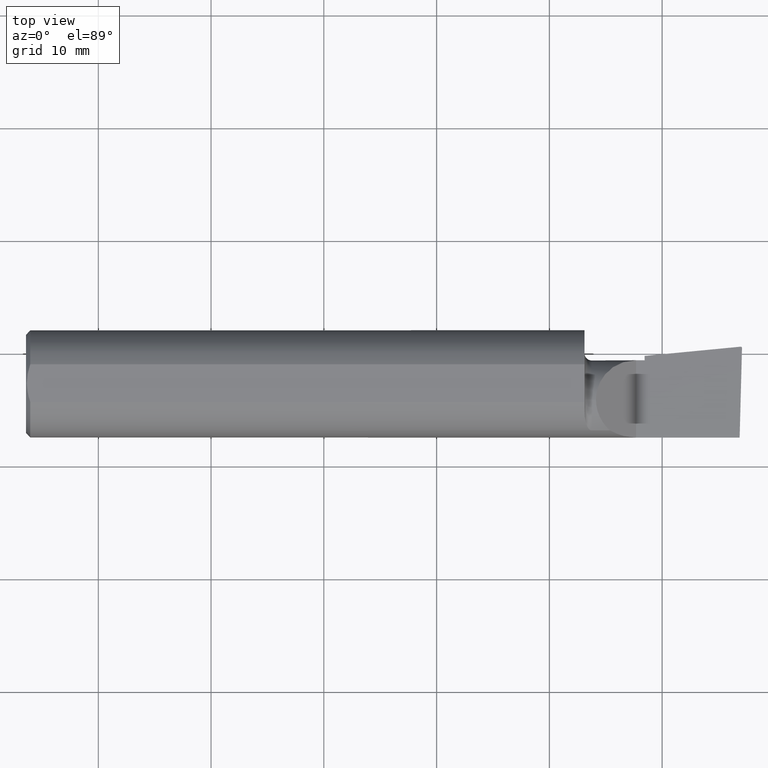
[diagram: clean part render]
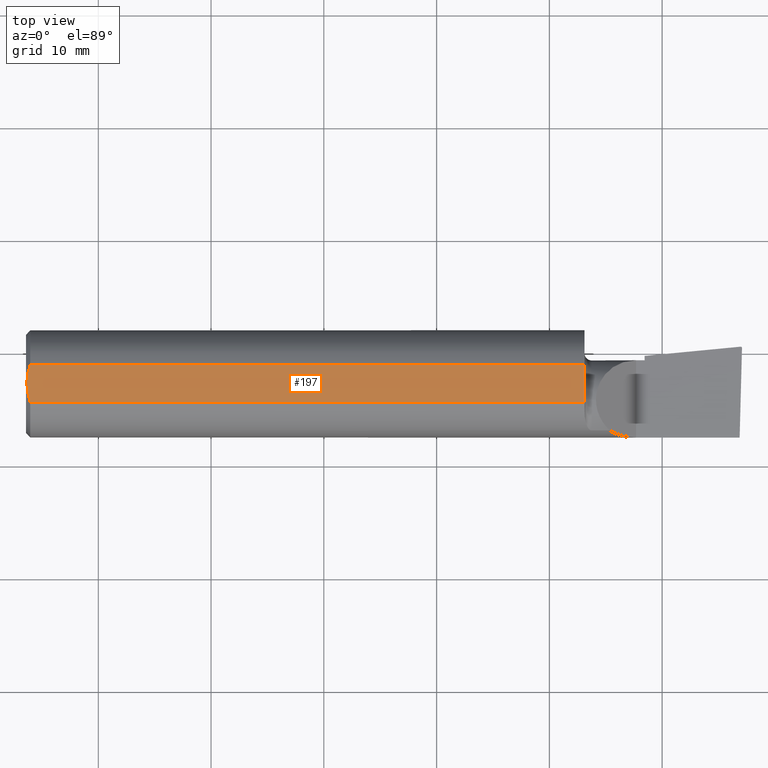
[diagram: same view with one face highlighted and labeled with its STEP entity id]
A machine part, top view. The second image highlights one B-rep face of the part: STEP entity #197.
In plain terms, the highlighted planar face has unit normal (0, 0, -1).
Its self-contained STEP definition (entity closure, byte-faithful):
#62 = CARTESIAN_POINT ( 'NONE',  ( 1.949999999999999956, 0.1000000000000000194, 0.1753499999999999504 ) ) ;
#152 = LINE ( 'NONE', #535, #507 ) ;
#195 = EDGE_CURVE ( 'NONE', #394, #509, #1163, .T. ) ;
#197 = ADVANCED_FACE ( 'NONE', ( #883 ), #1141, .F. ) ;
#205 = CARTESIAN_POINT ( 'NONE',  ( 0.01499999999999970281, 0.06597272163553669078, 0.1753499999999999504 ) ) ;
#206 = CARTESIAN_POINT ( 'NONE',  ( 1.949999999999999956, 0.06597272163553669078, 0.1753499999999999504 ) ) ;
#232 = EDGE_LOOP ( 'NONE', ( #1025, #410, #1195, #457, #715 ) ) ;
#272 = CARTESIAN_POINT ( 'NONE',  ( 0.007501547290577728448, -0.04467854003619182307, 0.1753499999999999504 ) ) ;
#297 = CARTESIAN_POINT ( 'NONE',  ( 0.002999999999999556841, 2.147418157515057056E-17, 0.1753499999999999504 ) ) ;
#300 = CARTESIAN_POINT ( 'NONE',  ( 0.01499999999999970281, 0.06597272163553669078, 0.1753499999999999504 ) ) ;
#326 = VECTOR ( 'NONE', #364, 39.37007874015748143 ) ;
#349 = VERTEX_POINT ( 'NONE', #297 ) ;
#364 = DIRECTION ( 'NONE',  ( 0.000000000000000000, -1.000000000000000000, 0.000000000000000000 ) ) ;
#394 = VERTEX_POINT ( 'NONE', #914 ) ;
#396 = CARTESIAN_POINT ( 'NONE',  ( 2.500000000000000000, -0.06597272163553669078, 0.1753499999999999504 ) ) ;
#401 = DIRECTION ( 'NONE',  ( -1.000000000000000000, -0.000000000000000000, -0.000000000000000000 ) ) ;
#410 = ORIENTED_EDGE ( 'NONE', *, *, #1042, .F. ) ;
#457 = ORIENTED_EDGE ( 'NONE', *, *, #592, .T. ) ;
#499 = DIRECTION ( 'NONE',  ( -0.000000000000000000, 0.000000000000000000, -1.000000000000000000 ) ) ;
#503 = CARTESIAN_POINT ( 'NONE',  ( 0.002999999999999555540, 0.02270494013651299173, 0.1753499999999999504 ) ) ;
#506 = VECTOR ( 'NONE', #401, 39.37007874015748143 ) ;
#507 = VECTOR ( 'NONE', #918, 39.37007874015748143 ) ;
#509 = VERTEX_POINT ( 'NONE', #1188 ) ;
#535 = CARTESIAN_POINT ( 'NONE',  ( 2.500000000000000000, 0.06597272163553669078, 0.1753499999999999504 ) ) ;
#588 = CARTESIAN_POINT ( 'NONE',  ( 0.002999999999999556841, 2.147418157515057056E-17, 0.1753499999999999504 ) ) ;
#592 = EDGE_CURVE ( 'NONE', #349, #509, #975, .T. ) ;
#623 = EDGE_CURVE ( 'NONE', #773, #394, #741, .T. ) ;
#650 = CARTESIAN_POINT ( 'NONE',  ( 0.002999999999999556841, 2.147418157515057056E-17, 0.1753499999999999504 ) ) ;
#678 = CARTESIAN_POINT ( 'NONE',  ( 0.007477619062988610441, 0.04461058841425281224, 0.1753499999999999504 ) ) ;
#715 = ORIENTED_EDGE ( 'NONE', *, *, #195, .F. ) ;
#741 = LINE ( 'NONE', #62, #326 ) ;
#773 = VERTEX_POINT ( 'NONE', #206 ) ;
#783 = CARTESIAN_POINT ( 'NONE',  ( 0.000000000000000000, 0.1000000000000000194, 0.1753499999999999504 ) ) ;
#821 = CARTESIAN_POINT ( 'NONE',  ( 0.002999999999999546866, -0.02272015056826472493, 0.1753499999999999504 ) ) ;
#864 = DIRECTION ( 'NONE',  ( -1.000000000000000000, 0.000000000000000000, 0.000000000000000000 ) ) ;
#883 = FACE_OUTER_BOUND ( 'NONE', #232, .T. ) ;
#914 = CARTESIAN_POINT ( 'NONE',  ( 1.949999999999999956, -0.06597272163553676017, 0.1753499999999999504 ) ) ;
#918 = DIRECTION ( 'NONE',  ( 1.000000000000000000, 0.000000000000000000, 0.000000000000000000 ) ) ;
#932 = CARTESIAN_POINT ( 'NONE',  ( 0.01499999999999970281, -0.06597272163553676017, 0.1753499999999999504 ) ) ;
#963 = B_SPLINE_CURVE_WITH_KNOTS ( 'NONE', 3,
 ( #205, #678, #503, #588 ),
 .UNSPECIFIED., .F., .F.,
 ( 4, 4 ),
 ( 0.003757229488784580036, 0.005453502051446297572 ),
 .UNSPECIFIED. ) ;
#975 = B_SPLINE_CURVE_WITH_KNOTS ( 'NONE', 3,
 ( #650, #821, #272, #932 ),
 .UNSPECIFIED., .F., .F.,
 ( 4, 4 ),
 ( 0.005453502051446297572, 0.007150910976410301476 ),
 .UNSPECIFIED. ) ;
#1025 = ORIENTED_EDGE ( 'NONE', *, *, #623, .F. ) ;
#1042 = EDGE_CURVE ( 'NONE', #1248, #773, #152, .T. ) ;
#1141 = PLANE ( 'NONE',  #1149 ) ;
#1149 = AXIS2_PLACEMENT_3D ( 'NONE', #783, #499, #864 ) ;
#1163 = LINE ( 'NONE', #396, #506 ) ;
#1188 = CARTESIAN_POINT ( 'NONE',  ( 0.01499999999999970281, -0.06597272163553676017, 0.1753499999999999504 ) ) ;
#1195 = ORIENTED_EDGE ( 'NONE', *, *, #1251, .T. ) ;
#1248 = VERTEX_POINT ( 'NONE', #300 ) ;
#1251 = EDGE_CURVE ( 'NONE', #1248, #349, #963, .T. ) ;